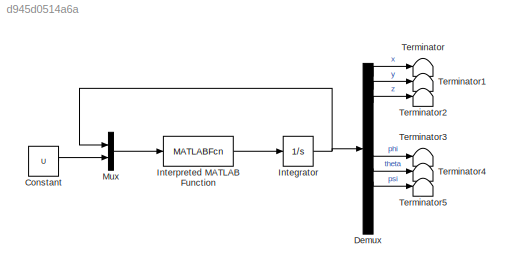
MODEL slx_d945d0514a6a
KIND model
CONFIG AbsTol = auto
CONFIG EnableMultiTasking = off
CONFIG FixedStep = auto
CONFIG MaxStep = auto
CONFIG MinStep = auto
CONFIG RelTol = 1e-3
CONFIG SampleTimeConstraint = Unconstrained
CONFIG SolverName = VariableStepAuto
CONFIG StartTime = 0.0
CONFIG StopTime = 10.0
BLOCK [Constant] Constant
  Value = U
BLOCK [Demux] Demux
  Outputs = 12
BLOCK [Integrator] Integrator
  InitialCondition = X0
BLOCK [MATLABFcn] Interpreted MATLAB Function
  MATLABFcn = octocopter_kinematics(u(1:12), u(13:20), m, l , k_T, k_M, lxx, lyy, lzz)
BLOCK [Mux] Mux
  DisplayOption = bar
  Inputs = 2
BLOCK [Terminator] Terminator
BLOCK [Terminator] Terminator1
BLOCK [Terminator] Terminator2
BLOCK [Terminator] Terminator3
BLOCK [Terminator] Terminator4
BLOCK [Terminator] Terminator5
LINE Constant:1 -> Mux:2
LINE Demux:1 -> Terminator:1
LINE Demux:2 -> Terminator1:1
LINE Demux:3 -> Terminator2:1
LINE Demux:7 -> Terminator3:1
LINE Demux:8 -> Terminator4:1
LINE Demux:9 -> Terminator5:1
NET Integrator:1 -> Demux:1, Mux:1
LINE Interpreted MATLAB Function:1 -> Integrator:1
LINE Mux:1 -> Interpreted MATLAB Function:1
note: NET lines group one-source signal fan-out (src -> all destinations, sorted); 1:1 wires keep LINE
